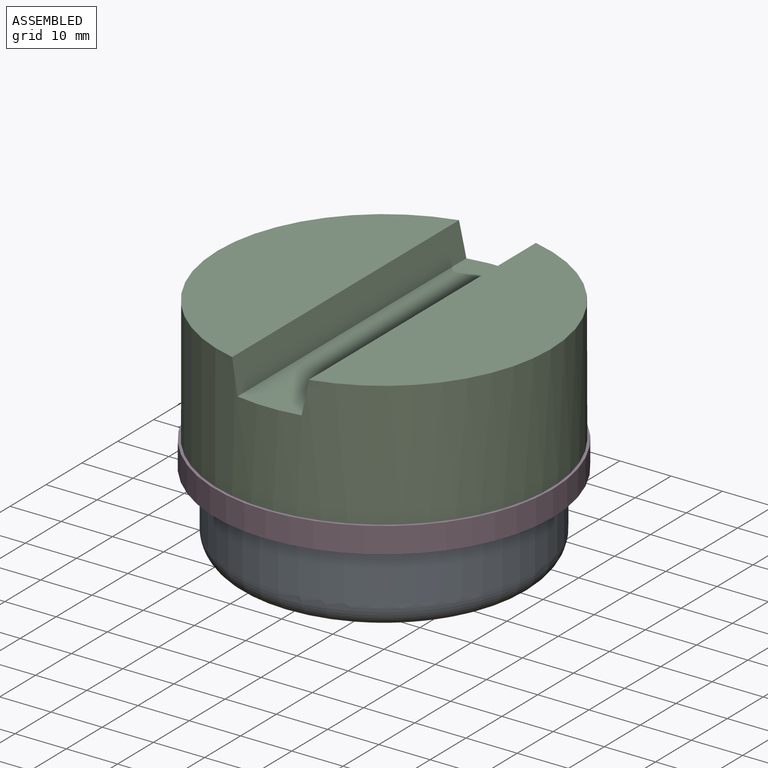
[diagram: assembled view]
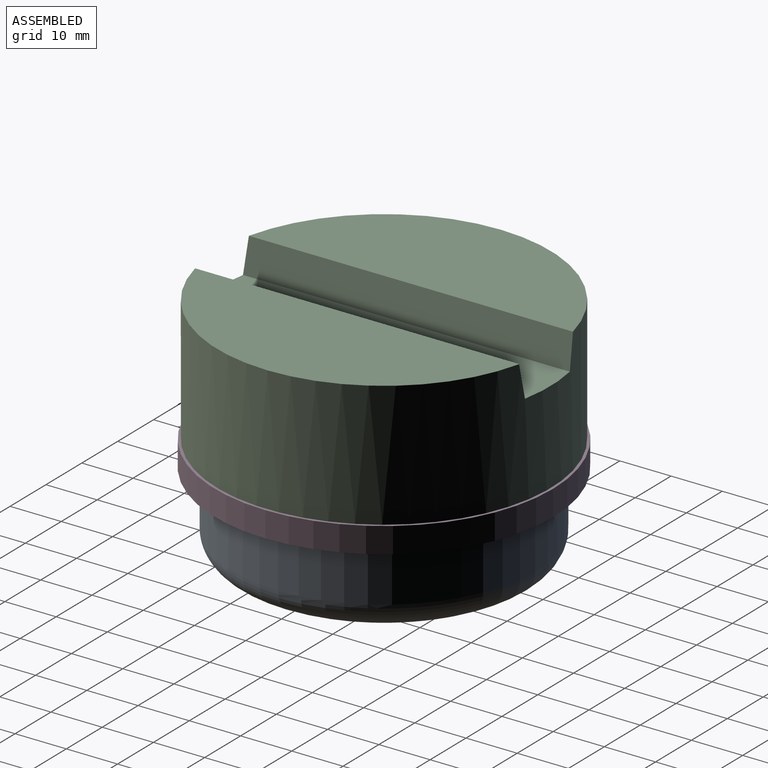
[diagram: assembled view, second angle]
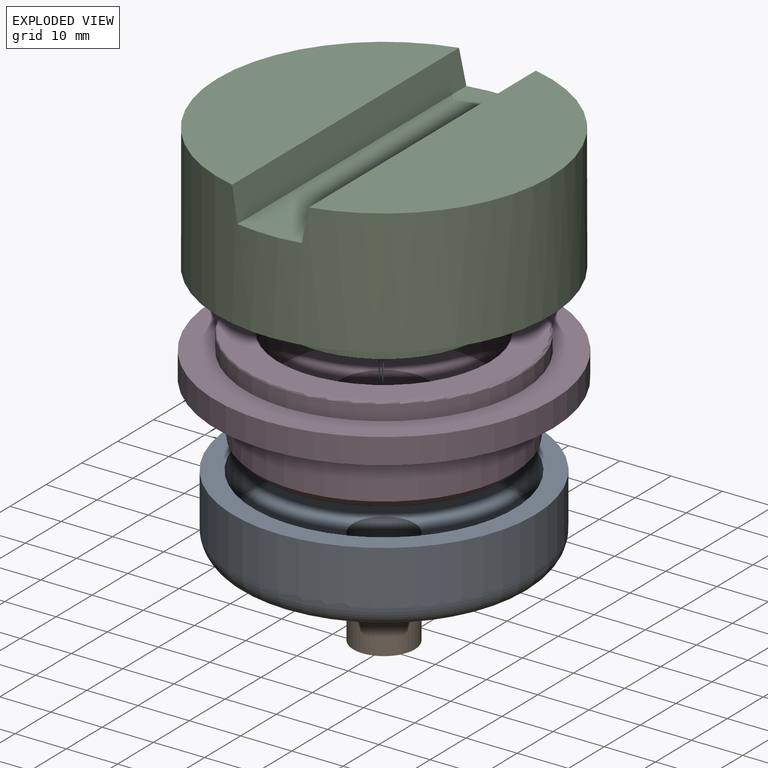
[diagram: exploded view]
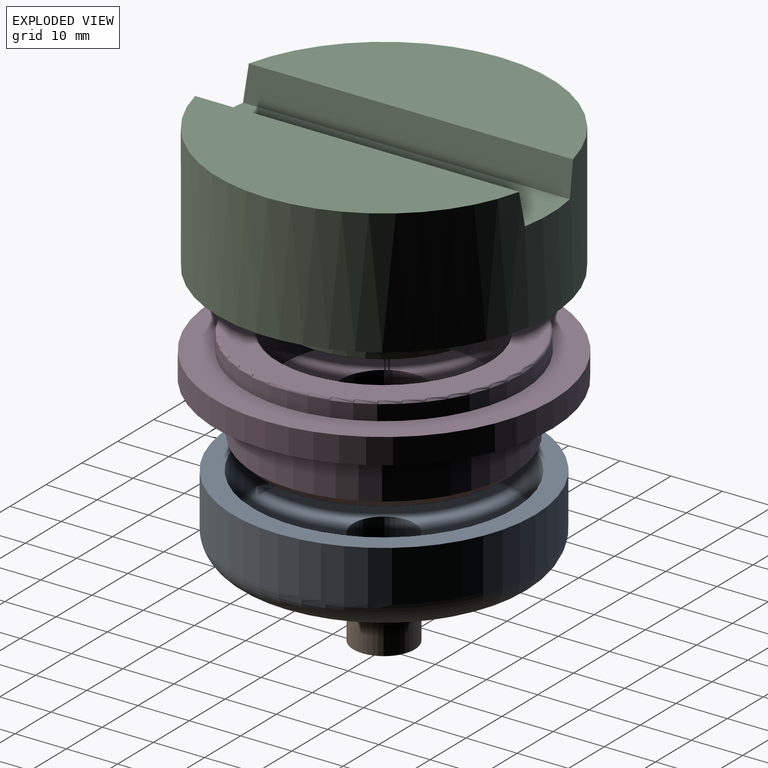
[diagram: exploded view, second angle]
ASSEMBLY  parts=4 mates=3
PART A: 8 faces, bbox 63.9x63.9x15 mm
  f0: plane 49x49mm, normal (0,0,1), area 1772.6mm2, adj f1,f7
  f1: cylinder r=6mm len=12mm, axis (0,0,-1), area 150.8mm2, adj f0,f2
  f2: plane 49x49mm, normal (0,0,-1), area 1772.6mm2, adj f1,f3
  f3: torus R=24.5mm, axis (0,0,-1), area 1366.1mm2, adj f2,f4
  f4: cylinder r=29.5mm len=59mm, axis (0,0,-1), area 1853.5mm2, adj f3,f5
  f5: plane 59x59mm, normal (0,0,1), area 691.2mm2, adj f4,f6
  f6: cylinder r=25.5mm len=51mm, axis (0,0,-1), area 1602.2mm2, adj f5,f7
  f7: torus R=24.5mm, axis (0,0,-1), area 248.1mm2, adj f0,f6
PART B: 5 faces, bbox 16x16x8.5 mm
  f0: plane 16x16mm, normal (0,0,-1), area 88mm2, adj f1,f4
  f1: cylinder r=8mm len=16mm, axis (0,0,1), area 100.5mm2, adj f0,f2
  f2: plane 16x16mm, normal (0,0,1), area 201.1mm2, adj f1
  f3: plane 12x12mm, normal (0,0,-1), area 113.1mm2, adj f4
  f4: cylinder r=6mm len=12mm, axis (0,0,1), area 244mm2, adj f0,f3
PART C: 13 faces, bbox 65x65x32 mm
  f0: cylinder r=32.5mm len=65mm, axis (0,0,-1), area 4822.8mm2, adj f1,f5,f6,f10,f11,f12
  f1: plane 63.25x25mm, normal (0,0,1), area 1176mm2, adj f0,f10
  f2: cone r=20mm half-angle=5.2deg, axis (0,0,1), area 1353.3mm2, adj f3,f9
  f3: plane 54.7x54.7mm, normal (0,0,-1), area 1093.3mm2, adj f2,f4
  f4: cylinder r=27.35mm len=54.7mm, axis (0,0,-1), area 601.5mm2, adj f3,f5
  f5: plane 65x65mm, normal (0,0,-1), area 968.3mm2, adj f0,f4
  f6: plane 63.25x25mm, normal (0,0,1), area 1176mm2, adj f0,f11
  f7: plane 20.5x20.5mm, normal (0,0,-1), area 330.1mm2, adj f8
  f8: cylinder r=10.25mm len=20.5mm, axis (0,0,-1), area 128.8mm2, adj f7,f9
  f9: plane 38x38mm, normal (0,0,-1), area 803.9mm2, adj f2,f8
  f10: plane 63.8x6.51mm, normal (-0.98,0,0.19), area 420.5mm2, adj f0,f1,f12
  f11: plane 63.8x6.51mm, normal (0.98,0,0.19), area 420.5mm2, adj f0,f6,f12
  f12: plane 65x12.5mm, normal (0,0,1), area 807.5mm2, adj f0,f10,f11
PART D: 13 faces, bbox 66x66x20 mm
  f0: plane 47.5x47.5mm, normal (0,0,-1), area 1545.1mm2, adj f2,f12
  f1: cylinder r=33mm len=66mm, axis (0,0,-1), area 1036.7mm2, adj f3,f10
  f2: cylinder r=8.5mm len=17mm, axis (0,0,-1), area 480.7mm2, adj f0,f7
  f3: plane 66x66mm, normal (0,0,1), area 1131mm2, adj f1,f4
  f4: cylinder r=27mm len=54mm, axis (0,0,-1), area 508.9mm2, adj f3,f8
  f5: plane 53x53mm, normal (0,0,1), area 826.5mm2, adj f8,f9
  f6: cone r=20.5mm half-angle=5.2deg, axis (0,0,1), area 1329.2mm2, adj f7,f9
  f7: plane 39x39mm, normal (0,0,1), area 967.5mm2, adj f2,f6
  f8: torus R=26.5mm, axis (0,0,1), area 132.3mm2, adj f4,f5
  f9: torus R=20.96mm, axis (0,0,1), area 96mm2, adj f5,f6
  f10: plane 66x66mm, normal (0,0,-1), area 1418.2mm2, adj f1,f11
  f11: cylinder r=25.25mm len=50.5mm, axis (0,0,1), area 1586.5mm2, adj f10,f12
  f12: cone r=25.25mm half-angle=45deg, axis (0,0,1), area 326.6mm2, adj f0,f11
PLACE A at identity
PLACE B at identity
PLACE C t=(0,0,20)mm
PLACE D at identity fixed
MATE fastened D.f1 <-> A.f1  axis (0,0,-1) through (0,0,0)mm
MATE fastened C.f0 <-> D.f1  axis (0,0,-1) through (0,0,16.5)mm
MATE fastened B.f1 <-> A.f1  axis (0,0,-1) through (0,0,0)mm
